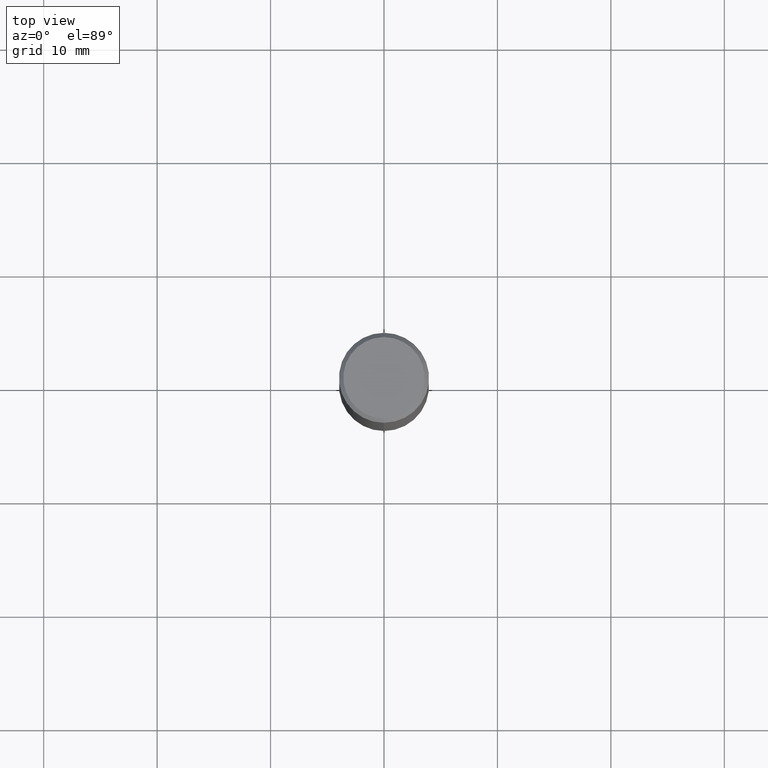
[diagram: clean part render]
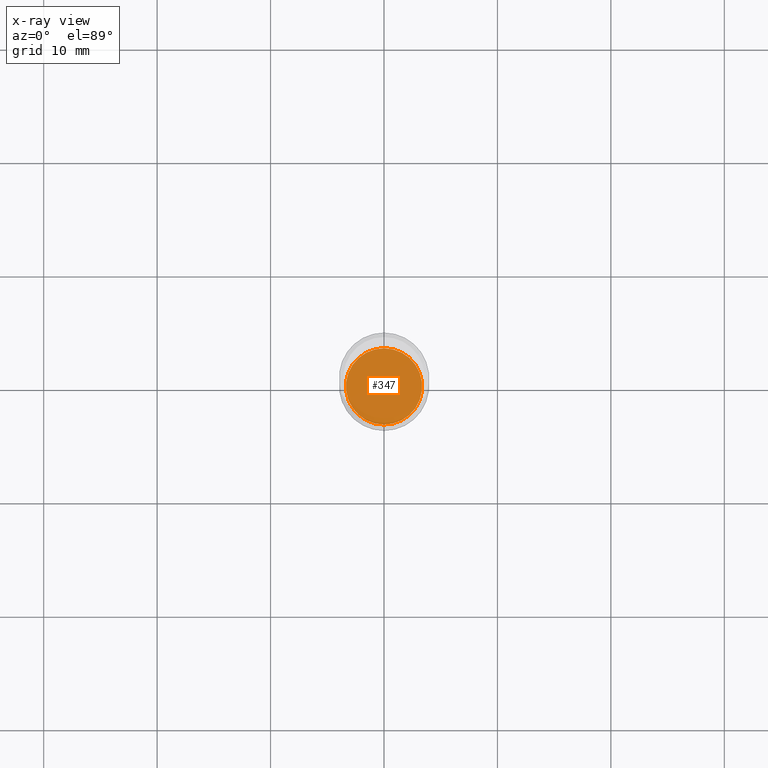
[diagram: x-ray — body ghosted, one internal face saturated and labeled with its STEP entity id]
A machine part, top view, then the same camera in x-ray: the body is ghosted and one INTERNAL B-rep face — a face not visible from any outside direction — is saturated and labeled: STEP entity #347.
In plain terms, the highlighted planar face has unit normal (-0, 0, 1).
Its self-contained STEP definition (entity closure, byte-faithful):
#26 = AXIS2_PLACEMENT_3D ( 'NONE', #376, #87, #217 ) ;
#27 = DIRECTION ( 'NONE',  ( -2.445345981516174728E-29, 3.491657230759845150E-15, 1.000000000000000000 ) ) ;
#41 = EDGE_CURVE ( 'NONE', #93, #141, #472, .T. ) ;
#48 = CIRCLE ( 'NONE', #160, 0.1323000000000000009 ) ;
#64 = DIRECTION ( 'NONE',  ( -6.982962677686265922E-15, -1.000000000000000000, 4.129777768199944284E-15 ) ) ;
#77 = EDGE_LOOP ( 'NONE', ( #481, #317 ) ) ;
#87 = DIRECTION ( 'NONE',  ( -2.445345981516174448E-29, 3.491657230759844755E-15, 1.000000000000000000 ) ) ;
#93 = VERTEX_POINT ( 'NONE', #465 ) ;
#104 = PLANE ( 'NONE',  #26 ) ;
#141 = VERTEX_POINT ( 'NONE', #258 ) ;
#160 = AXIS2_PLACEMENT_3D ( 'NONE', #486, #257, #64 ) ;
#217 = DIRECTION ( 'NONE',  ( -6.982962677686265922E-15, -1.000000000000000000, 3.491657230759844755E-15 ) ) ;
#257 = DIRECTION ( 'NONE',  ( -2.445345981516174728E-29, 3.491657230759845150E-15, 1.000000000000000000 ) ) ;
#258 = CARTESIAN_POINT ( 'NONE',  ( 9.418243962500552058E-16, 0.1322999999999938947, -1.750000000000000666 ) ) ;
#317 = ORIENTED_EDGE ( 'NONE', *, *, #394, .F. ) ;
#321 = AXIS2_PLACEMENT_3D ( 'NONE', #352, #27, #501 ) ;
#347 = ADVANCED_FACE ( 'NONE', ( #455 ), #104, .F. ) ;
#352 = CARTESIAN_POINT ( 'NONE',  ( 4.279355467653306195E-29, -6.110400153829729604E-15, -1.750000000000000222 ) ) ;
#376 = CARTESIAN_POINT ( 'NONE',  ( 4.279355467653306195E-29, -6.110400153829729604E-15, -1.750000000000000222 ) ) ;
#394 = EDGE_CURVE ( 'NONE', #141, #93, #48, .T. ) ;
#455 = FACE_OUTER_BOUND ( 'NONE', #77, .T. ) ;
#465 = CARTESIAN_POINT ( 'NONE',  ( -9.238459622578502223E-16, -0.1323000000000061072, -1.749999999999999556 ) ) ;
#472 = CIRCLE ( 'NONE', #321, 0.1323000000000000009 ) ;
#481 = ORIENTED_EDGE ( 'NONE', *, *, #41, .F. ) ;
#486 = CARTESIAN_POINT ( 'NONE',  ( 4.279355467653306195E-29, -6.110400153829729604E-15, -1.750000000000000222 ) ) ;
#501 = DIRECTION ( 'NONE',  ( -6.982962677686265922E-15, -1.000000000000000000, 4.129777768199944284E-15 ) ) ;